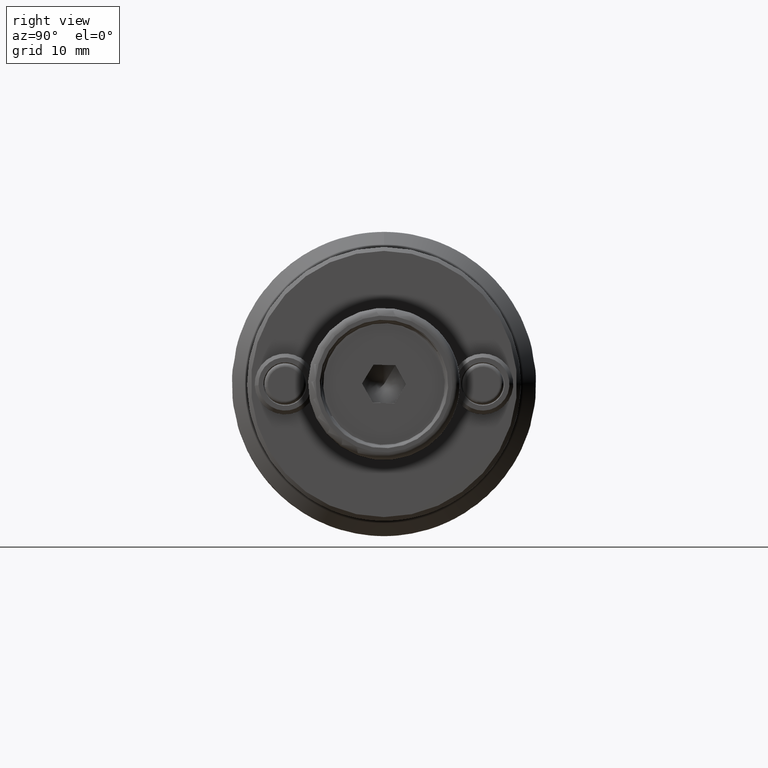
[diagram: clean part render]
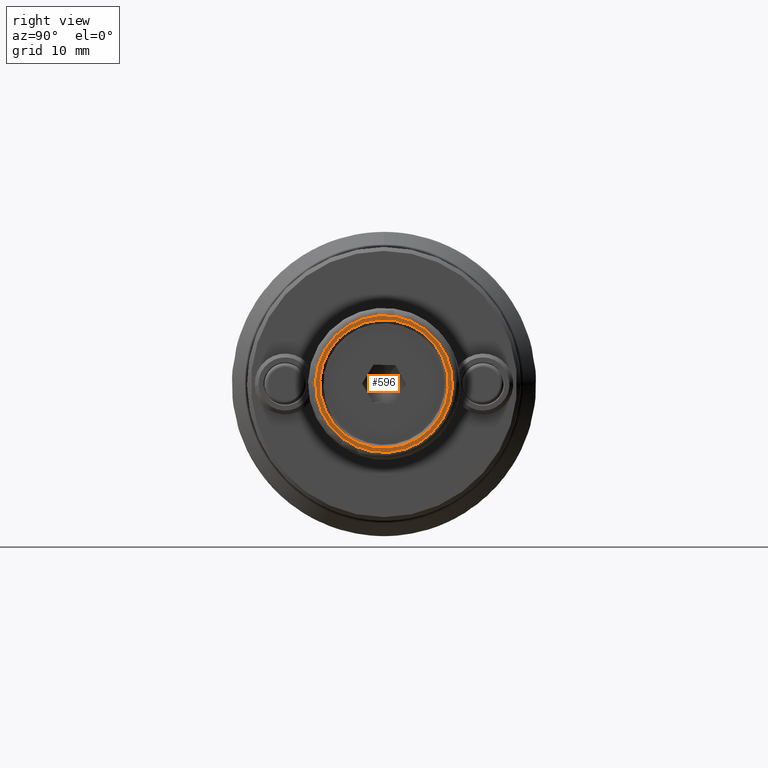
[diagram: same view with one face highlighted and labeled with its STEP entity id]
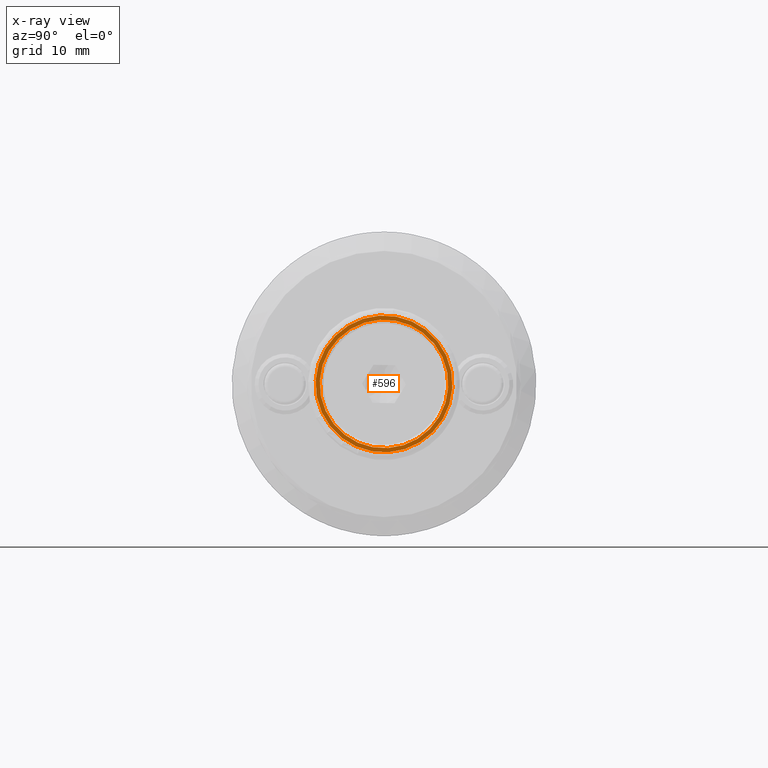
[diagram: x-ray of the same camera — body ghosted, the highlighted face saturated]
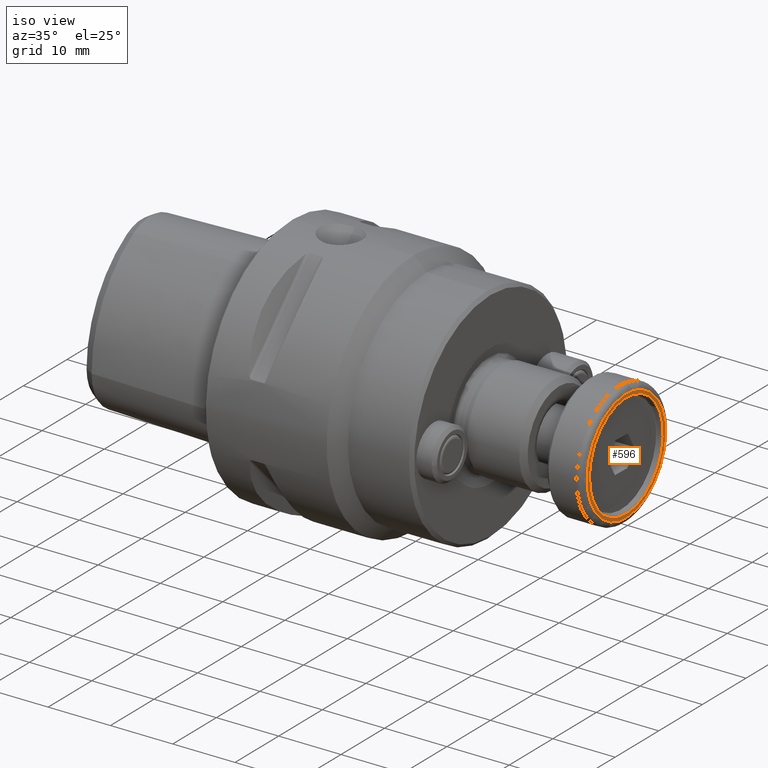
[diagram: same view with one face highlighted and labeled with its STEP entity id]
A machine part, right view. The second image highlights one B-rep face of the part: STEP entity #596.
The next image is the same camera in x-ray: the body ghosted, the highlighted face saturated — about 0% of this face is hidden behind the body in this view.
A second angle (iso view) of the same face is appended — the face is thin or edge-on in the first view.
In plain terms, the highlighted planar face has unit normal (-1, 0, 0).
Its self-contained STEP definition (entity closure, byte-faithful):
#596 = ADVANCED_FACE( '', ( #1243, #1244 ), #1245, .F. );
#1243 = FACE_BOUND( '', #1914, .T. );
#1244 = FACE_OUTER_BOUND( '', #1915, .T. );
#1245 = PLANE( '', #1916 );
#1914 = EDGE_LOOP( '', ( #3063 ) );
#1915 = EDGE_LOOP( '', ( #3064 ) );
#1916 = AXIS2_PLACEMENT_3D( '', #3065, #3066, #3067 );
#3063 = ORIENTED_EDGE( '', *, *, #3809, .T. );
#3064 = ORIENTED_EDGE( '', *, *, #3810, .T. );
#3065 = CARTESIAN_POINT( '', ( 3.00000000000000, 0.000000000000000, -1.73472347597680E-015 ) );
#3066 = DIRECTION( '', ( -1.00000000000000, 6.12303176911189E-017, 0.000000000000000 ) );
#3067 = DIRECTION( '', ( -6.12303176911189E-017, -1.00000000000000, 0.000000000000000 ) );
#3809 = EDGE_CURVE( '', #4503, #4503, #4504, .T. );
#3810 = EDGE_CURVE( '', #4505, #4505, #4506, .F. );
#4503 = VERTEX_POINT( '', #5930 );
#4504 = CIRCLE( '', #5931, 8.45000000000000 );
#4505 = VERTEX_POINT( '', #5932 );
#4506 = CIRCLE( '', #5933, 9.00000000000000 );
#5930 = CARTESIAN_POINT( '', ( 3.00000000000000, -8.45000000000000, 0.000000000000000 ) );
#5931 = AXIS2_PLACEMENT_3D( '', #6563, #6564, #6565 );
#5932 = CARTESIAN_POINT( '', ( 3.00000000000000, -9.00000000000000, -1.73472347597680E-015 ) );
#5933 = AXIS2_PLACEMENT_3D( '', #6566, #6567, #6568 );
#6563 = CARTESIAN_POINT( '', ( 3.00000000000000, 0.000000000000000, 0.000000000000000 ) );
#6564 = DIRECTION( '', ( -1.00000000000000, 6.12303176911189E-017, 0.000000000000000 ) );
#6565 = DIRECTION( '', ( -6.12303176911189E-017, -1.00000000000000, 0.000000000000000 ) );
#6566 = CARTESIAN_POINT( '', ( 3.00000000000000, -6.12303176911189E-017, -1.73472347597680E-015 ) );
#6567 = DIRECTION( '', ( -1.00000000000000, 6.12303176911189E-017, 0.000000000000000 ) );
#6568 = DIRECTION( '', ( -6.12303176911189E-017, -1.00000000000000, 0.000000000000000 ) );